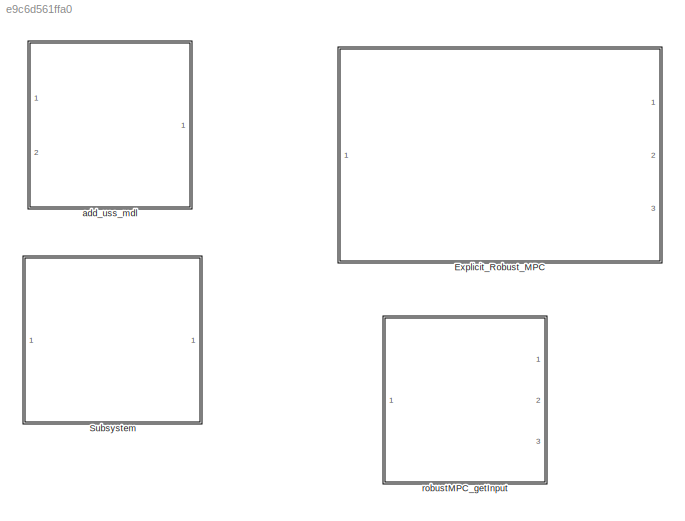
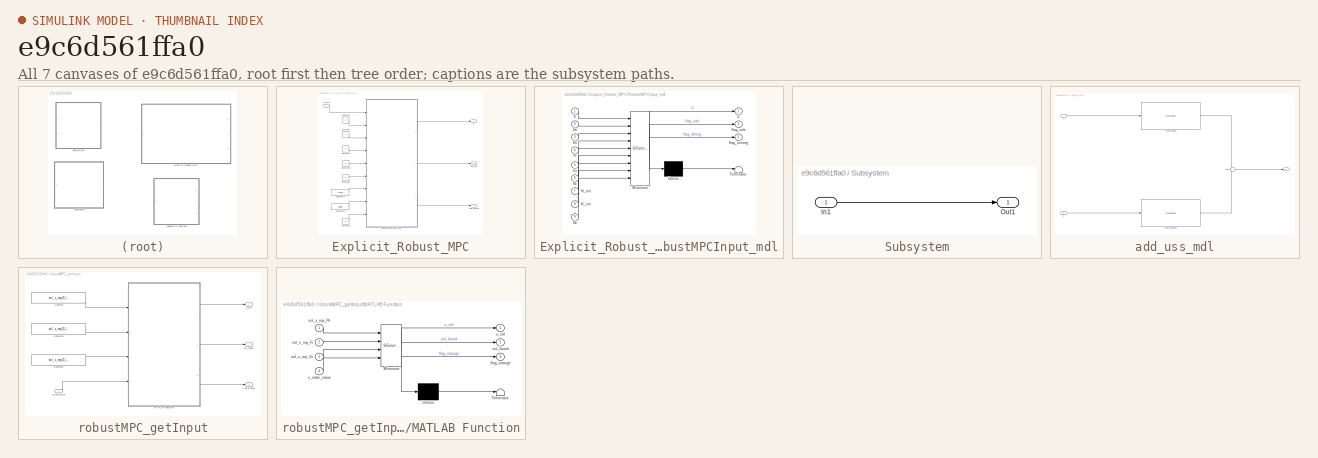
[diagram: thumbnail index - all 7 canvases of the model, root first then tree order]
MODEL slx_e9c6d561ffa0
KIND library
BLOCK [SubSystem] Explicit_Robust_MPC
  FunctionWithSeparateData = off
  MaskHideContents = off
  MinAlgLoopOccurrences = off
  Opaque = off
  Ports = [1, 3]
  PropExecContextOutsideSubsystem = off
  RTWSystemCode = Auto
  RequestExecContextInheritance = off
BLOCK [Constant] Explicit_Robust_MPC/Constant
  Value = H
BLOCK [Constant] Explicit_Robust_MPC/Constant1
  Value = K
BLOCK [Constant] Explicit_Robust_MPC/Constant2
  Value = F
BLOCK [Constant] Explicit_Robust_MPC/Constant3
  Value = G
BLOCK [Constant] Explicit_Robust_MPC/Constant4
  Value = Nc
BLOCK [Constant] Explicit_Robust_MPC/Constant5
  Value = Nx
BLOCK [Constant] Explicit_Robust_MPC/Constant6
  Value = Ki_init
BLOCK [Constant] Explicit_Robust_MPC/Constant7
  Value = Hi_init
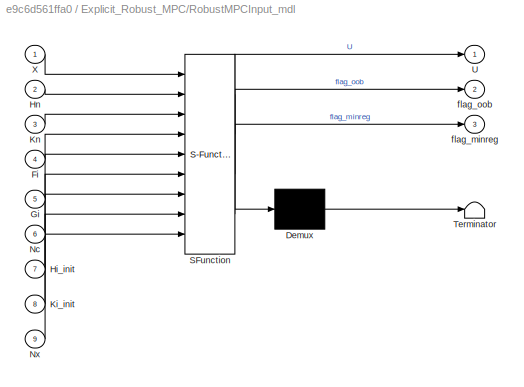
BLOCK [SubSystem] Explicit_Robust_MPC/RobustMPCInput_mdl
  ErrorFcn = Stateflow.Translate.translate
  FunctionWithSeparateData = off
  MaskHideContents = off
  MinAlgLoopOccurrences = off
  Opaque = off
  PermitHierarchicalResolution = ExplicitOnly
  Ports = [9, 3]
  PropExecContextOutsideSubsystem = off
  RTWSystemCode = Auto
  RequestExecContextInheritance = off
  SFBlockType = MATLAB Function
  TreatAsAtomicUnit = on
BLOCK [Demux] Explicit_Robust_MPC/RobustMPCInput_mdl/ Demux 
  Outputs = 1
  Ports = [1, 1]
BLOCK [S-Function] Explicit_Robust_MPC/RobustMPCInput_mdl/ SFunction 
  EnableBusSupport = on
  FunctionName = sf_sfun
  PortCounts = [9 4]
  Ports = [9, 4]
  Tag = Stateflow S-Function Robust_MPC_Library 1
BLOCK [Terminator] Explicit_Robust_MPC/RobustMPCInput_mdl/ Terminator 
BLOCK [Inport] Explicit_Robust_MPC/RobustMPCInput_mdl/Fi
  IconDisplay = Port number
  Port = 4
BLOCK [Inport] Explicit_Robust_MPC/RobustMPCInput_mdl/Gi
  IconDisplay = Port number
  Port = 5
BLOCK [Inport] Explicit_Robust_MPC/RobustMPCInput_mdl/Hi_init
  IconDisplay = Port number
  Port = 7
BLOCK [Inport] Explicit_Robust_MPC/RobustMPCInput_mdl/Hn
  IconDisplay = Port number
  Port = 2
BLOCK [Inport] Explicit_Robust_MPC/RobustMPCInput_mdl/Ki_init
  IconDisplay = Port number
  Port = 8
BLOCK [Inport] Explicit_Robust_MPC/RobustMPCInput_mdl/Kn
  IconDisplay = Port number
  Port = 3
BLOCK [Inport] Explicit_Robust_MPC/RobustMPCInput_mdl/Nc
  IconDisplay = Port number
  Port = 6
BLOCK [Inport] Explicit_Robust_MPC/RobustMPCInput_mdl/Nx
  IconDisplay = Port number
  Port = 9
BLOCK [Outport] Explicit_Robust_MPC/RobustMPCInput_mdl/U
  IconDisplay = Port number
BLOCK [Inport] Explicit_Robust_MPC/RobustMPCInput_mdl/X
  IconDisplay = Port number
BLOCK [Outport] Explicit_Robust_MPC/RobustMPCInput_mdl/flag_minreg
  IconDisplay = Port number
  Port = 3
BLOCK [Outport] Explicit_Robust_MPC/RobustMPCInput_mdl/flag_oob
  IconDisplay = Port number
  Port = 2
BLOCK [Outport] Explicit_Robust_MPC/U
  IconDisplay = Port number
BLOCK [Outport] Explicit_Robust_MPC/flag_minreg
  IconDisplay = Port number
  Port = 3
BLOCK [Outport] Explicit_Robust_MPC/flag_oob
  IconDisplay = Port number
  Port = 2
BLOCK [Inport] Explicit_Robust_MPC/x_state
  IconDisplay = Port number
BLOCK [SubSystem] Subsystem
  FunctionWithSeparateData = off
  MaskHideContents = off
  MinAlgLoopOccurrences = off
  Opaque = off
  Ports = [1, 1]
  PropExecContextOutsideSubsystem = off
  RTWSystemCode = Auto
  RequestExecContextInheritance = off
BLOCK [Inport] Subsystem/In1
  IconDisplay = Port number
BLOCK [Outport] Subsystem/Out1
  IconDisplay = Port number
BLOCK [SubSystem] add_uss_mdl
  FunctionWithSeparateData = off
  MaskHideContents = off
  MinAlgLoopOccurrences = off
  Opaque = off
  Ports = [2, 1]
  PropExecContextOutsideSubsystem = off
  RTWSystemCode = Auto
  RequestExecContextInheritance = off
BLOCK [StateSpace] add_uss_mdl/State-Space
  A = add_usys_d_struct.continuous.matrices.A
  B = add_usys_d_struct.continuous.matrices.B
  C = add_usys_d_struct.continuous.matrices.C
  D = add_usys_d_struct.continuous.matrices.D
BLOCK [StateSpace] add_uss_mdl/State-Space1
  A = add_usys_d_struct.continuous.matrices.A
  B = add_usys_d_struct.continuous.matrices.E
  C = add_usys_d_struct.continuous.matrices.C
  D = add_usys_d_struct.continuous.matrices.D
BLOCK [Sum] add_uss_mdl/Sum
  IconShape = round
  InputSameDT = off
  Inputs = +|+
  OutDataTypeStr = Inherit: Inherit via internal rule
  Ports = [2, 1]
  SaturateOnIntegerOverflow = off
BLOCK [Inport] add_uss_mdl/u
  IconDisplay = Port number
BLOCK [Inport] add_uss_mdl/w
  IconDisplay = Port number
  Port = 2
BLOCK [Outport] add_uss_mdl/y
  IconDisplay = Port number
BLOCK [SubSystem] robustMPC_getInput
  FunctionWithSeparateData = off
  MaskHideContents = off
  MinAlgLoopOccurrences = off
  Opaque = off
  Ports = [1, 3]
  PropExecContextOutsideSubsystem = off
  RTWSystemCode = Auto
  RequestExecContextInheritance = off
BLOCK [Constant] robustMPC_getInput/Constant
  Value = sol_x_mp{1}.Pn
BLOCK [Constant] robustMPC_getInput/Constant1
  Value = sol_x_mp{1}.Fi
BLOCK [Constant] robustMPC_getInput/Constant2
  Value = sol_x_mp{1}.Gi
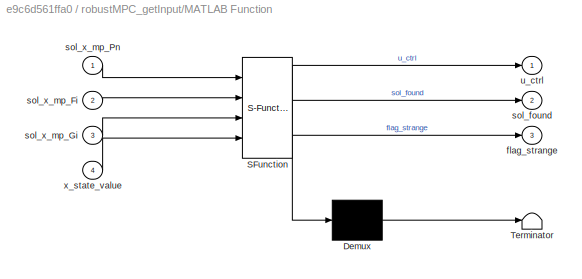
BLOCK [SubSystem] robustMPC_getInput/MATLAB Function
  ErrorFcn = Stateflow.Translate.translate
  FunctionWithSeparateData = off
  MaskHideContents = off
  MinAlgLoopOccurrences = off
  Opaque = off
  PermitHierarchicalResolution = ExplicitOnly
  Ports = [4, 3]
  PropExecContextOutsideSubsystem = off
  RTWSystemCode = Auto
  RequestExecContextInheritance = off
  SFBlockType = MATLAB Function
  TreatAsAtomicUnit = on
BLOCK [Demux] robustMPC_getInput/MATLAB Function/ Demux 
  Outputs = 1
  Ports = [1, 1]
BLOCK [S-Function] robustMPC_getInput/MATLAB Function/ SFunction 
  EnableBusSupport = off
  FunctionName = sf_sfun
  PortCounts = [4 4]
  Ports = [4, 4]
  Tag = Stateflow S-Function Robust_MPC_Library 2
BLOCK [Terminator] robustMPC_getInput/MATLAB Function/ Terminator 
BLOCK [Outport] robustMPC_getInput/MATLAB Function/flag_strange
  IconDisplay = Port number
  Port = 3
BLOCK [Outport] robustMPC_getInput/MATLAB Function/sol_found
  IconDisplay = Port number
  Port = 2
BLOCK [Inport] robustMPC_getInput/MATLAB Function/sol_x_mp_Fi
  IconDisplay = Port number
  Port = 2
BLOCK [Inport] robustMPC_getInput/MATLAB Function/sol_x_mp_Gi
  IconDisplay = Port number
  Port = 3
BLOCK [Inport] robustMPC_getInput/MATLAB Function/sol_x_mp_Pn
  IconDisplay = Port number
BLOCK [Outport] robustMPC_getInput/MATLAB Function/u_ctrl
  IconDisplay = Port number
BLOCK [Inport] robustMPC_getInput/MATLAB Function/x_state_value
  IconDisplay = Port number
  Port = 4
BLOCK [Outport] robustMPC_getInput/flag_strange
  IconDisplay = Port number
  Port = 3
BLOCK [Outport] robustMPC_getInput/sol_found
  IconDisplay = Port number
  Port = 2
BLOCK [Outport] robustMPC_getInput/u_ctrl
  IconDisplay = Port number
BLOCK [Inport] robustMPC_getInput/x_state_value
  IconDisplay = Port number
LINE Explicit_Robust_MPC/Constant1:1 -> Explicit_Robust_MPC/RobustMPCInput_mdl:3
LINE Explicit_Robust_MPC/Constant2:1 -> Explicit_Robust_MPC/RobustMPCInput_mdl:4
LINE Explicit_Robust_MPC/Constant3:1 -> Explicit_Robust_MPC/RobustMPCInput_mdl:5
LINE Explicit_Robust_MPC/Constant4:1 -> Explicit_Robust_MPC/RobustMPCInput_mdl:6
LINE Explicit_Robust_MPC/Constant5:1 -> Explicit_Robust_MPC/RobustMPCInput_mdl:9
LINE Explicit_Robust_MPC/Constant6:1 -> Explicit_Robust_MPC/RobustMPCInput_mdl:8
LINE Explicit_Robust_MPC/Constant7:1 -> Explicit_Robust_MPC/RobustMPCInput_mdl:7
LINE Explicit_Robust_MPC/Constant:1 -> Explicit_Robust_MPC/RobustMPCInput_mdl:2
LINE Explicit_Robust_MPC/RobustMPCInput_mdl:1 -> Explicit_Robust_MPC/U:1
LINE Explicit_Robust_MPC/RobustMPCInput_mdl:2 -> Explicit_Robust_MPC/flag_oob:1
LINE Explicit_Robust_MPC/RobustMPCInput_mdl:3 -> Explicit_Robust_MPC/flag_minreg:1
LINE Explicit_Robust_MPC/x_state:1 -> Explicit_Robust_MPC/RobustMPCInput_mdl:1
LINE Subsystem/In1:1 -> Subsystem/Out1:1
LINE add_uss_mdl/State-Space1:1 -> add_uss_mdl/Sum:2
LINE add_uss_mdl/State-Space:1 -> add_uss_mdl/Sum:1
LINE add_uss_mdl/Sum:1 -> add_uss_mdl/y:1
LINE add_uss_mdl/u:1 -> add_uss_mdl/State-Space:1
LINE add_uss_mdl/w:1 -> add_uss_mdl/State-Space1:1
LINE robustMPC_getInput/Constant1:1 -> robustMPC_getInput/MATLAB Function:2
LINE robustMPC_getInput/Constant2:1 -> robustMPC_getInput/MATLAB Function:3
LINE robustMPC_getInput/Constant:1 -> robustMPC_getInput/MATLAB Function:1
LINE robustMPC_getInput/MATLAB Function:1 -> robustMPC_getInput/u_ctrl:1
LINE robustMPC_getInput/MATLAB Function:2 -> robustMPC_getInput/sol_found:1
LINE robustMPC_getInput/MATLAB Function:3 -> robustMPC_getInput/flag_strange:1
LINE robustMPC_getInput/x_state_value:1 -> robustMPC_getInput/MATLAB Function:4
